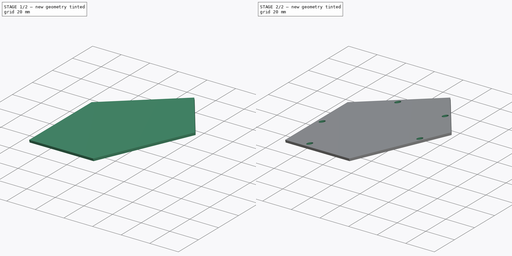
[diagram: build sequence overview — one tinted view per stage of 2, left to right]
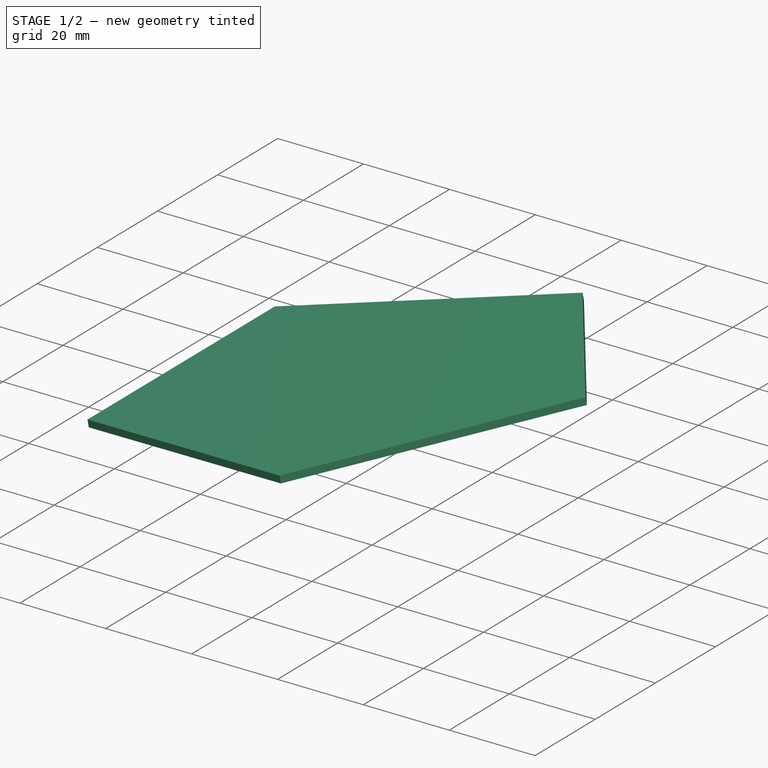
[diagram: stage 1 of 2 — iso view after this stage's code; geometry added in this stage tinted green]
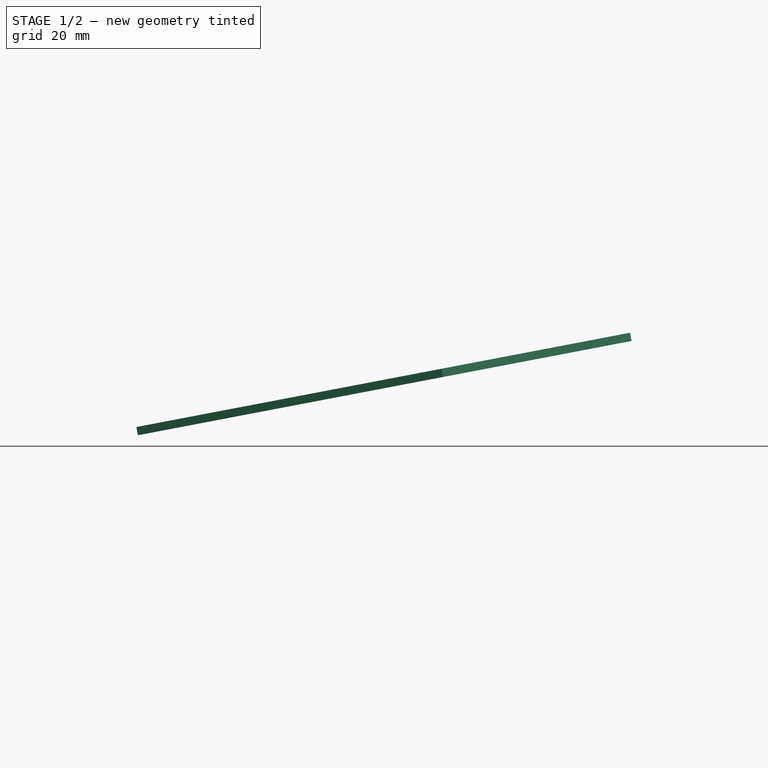
[diagram: stage 1 of 2 — front view after this stage's code; geometry added in this stage tinted green]
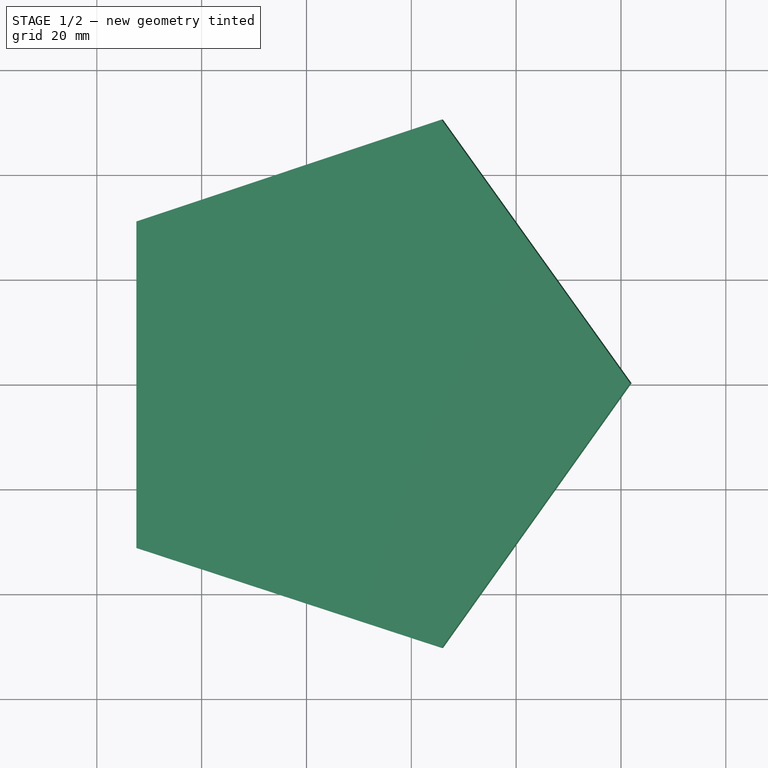
[diagram: stage 1 of 2 — top view after this stage's code; geometry added in this stage tinted green]
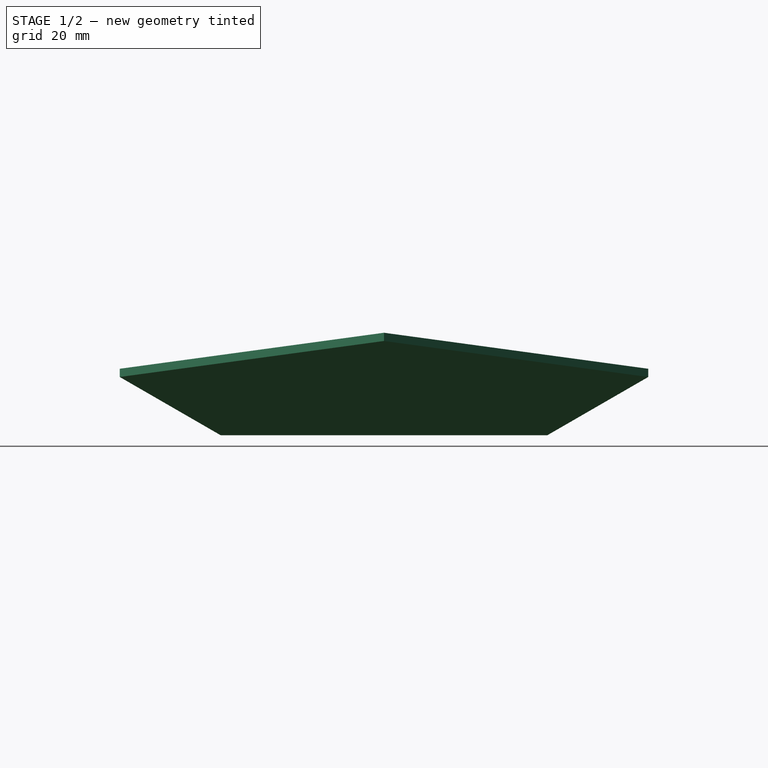
[diagram: stage 1 of 2 — right view after this stage's code; geometry added in this stage tinted green]
FCSTD DOCUMENT  (FreeCAD 0.20R27422 (Git))
Label: inner_assembly_PraGa
License: All rights reserved
LicenseURL: http://en.wikipedia.org/wiki/All_rights_reserved
objects: App::Link×15, App::DocumentObjectGroup×4, App::Part×2, PartDesign::SubShapeBinder×2, Sketcher::SketchObject×2, PartDesign::CoordinateSystem×1, App::FeaturePython×1, Part::Part2DObjectPython×1, PartDesign::Plane×1, PartDesign::Pad×1, PartDesign::Pocket×1, PartDesign::Body×1
note: 12 computed .brp shape members not serialized (recipe doc carries the construction recipe); baked Part::Feature solids carry a one-line shape summary decoded from their .brp
EXTERNAL_REF file=Inner_rev2.FCStd obj=LCS_1
EXTERNAL_REF file=Inner_rev2.FCStd obj=Part
EXTERNAL_REF file=Inner_rev2.FCStd obj=HoleAxis_3
EXTERNAL_REF file=Inner_rev2.FCStd obj=HoleAxis_2
EXTERNAL_REF file=Inner_rev2.FCStd obj=HoleAxis_10
EXTERNAL_REF file=Inner_rev2.FCStd obj=HoleAxis_15
EXTERNAL_REF file=Inner_rev2.FCStd obj=Part001
EXTERNAL_REF file=Inner_rev2.FCStd obj=HoleAxis_19
EXTERNAL_REF file=Inner_rev2.FCStd obj=Part002
EXTERNAL_REF file=Inner_rev2.FCStd obj=HoleAxis_24
EXTERNAL_REF file=Inner_rev2.FCStd obj=Part003

FEATURE [App::DocumentObjectGroup] Parts
FEATURE [PartDesign::CoordinateSystem] LCS_Origin
  AttacherType = Attacher::AttachEngine3D
  MapMode = 2
  Support = -> [X_Axis]
FEATURE [App::FeaturePython] Variables  # WARN: FeaturePython — macro-defined, semantics opaque (R4)
  Type = App::PropertyContainer
FEATURE [App::DocumentObjectGroup] Constraints
FEATURE [App::DocumentObjectGroup] Configurations
FEATURE [App::Link] shell_part
  AssemblyType = Part::Link
  AttachedBy = #LCS_1
  AttachedTo = Parent Assembly#LCS_Origin
  AttachmentOffset = pos=(0,0,0) rot=(-0.57735,-0.57735,0.57735;2.0944rad)
  LinkPlacement = pos=(54.4609,1.74e-14,1.6e-14) rot=(0,-1,0;0.188711rad)
  LinkedObject = -> <external Inner_rev2.FCStd>#Part
  Placement = pos=(54.4609,1.74e-14,1.6e-14) rot=(0,-1,0;0.188711rad)
  SolverId = Asm4EE
  expr: Placement = LCS_Origin.Placement * AttachmentOffset * Inner_rev2#LCS_1.Placement ^ -1
FEATURE [App::Link] shell_part001
  AssemblyType = Part::Link
  AttachedBy = #HoleAxis_3
  AttachedTo = shell_part#HoleAxis_3
  AttachmentOffset = pos=(0,0,0) rot=(1,0,0;3.14159rad)
  LinkPlacement = pos=(54.4609,5.33e-14,7.64e-14) rot=(-0.947228,0.307773,-0.089642;3.08336rad)
  LinkedObject = -> <external Inner_rev2.FCStd>#Part
  Placement = pos=(54.4609,5.33e-14,7.64e-14) rot=(-0.947228,0.307773,-0.089642;3.08336rad)
  SolverId = Asm4EE
  expr: Placement = shell_part.Placement * Inner_rev2#HoleAxis_3.Placement * AttachmentOffset * Inner_rev2#HoleAxis_3.Placement ^ -1
FEATURE [App::Link] shell
  AssemblyType = Part::Link
  AttachedBy = #HoleAxis_2
  AttachedTo = shell_part001#HoleAxis_2
  AttachmentOffset = pos=(0,0,0) rot=(1,0,0;3.14159rad)
  LinkPlacement = pos=(54.4609,7.1e-15,1.146e-13) rot=(0.093433,-0.1286,-0.987285;1.26883rad)
  LinkedObject = -> <external Inner_rev2.FCStd>#Part
  Placement = pos=(54.4609,7.1e-15,1.146e-13) rot=(0.093433,-0.1286,-0.987285;1.26883rad)
  SolverId = Asm4EE
  expr: Placement = shell_part001.Placement * Inner_rev2#HoleAxis_2.Placement * AttachmentOffset * Inner_rev2#HoleAxis_2.Placement ^ -1
FEATURE [App::Link] shell_part002
  AssemblyType = Part::Link
  AttachedBy = #HoleAxis_3
  AttachedTo = shell#HoleAxis_3
  AttachmentOffset = pos=(0,0,0) rot=(1,0,0;3.14159rad)
  LinkPlacement = pos=(54.4609,0,1.811e-13) rot=(-0.586878,0.807768,-0.05554;2.989rad)
  LinkedObject = -> <external Inner_rev2.FCStd>#Part
  Placement = pos=(54.4609,0,1.811e-13) rot=(-0.586878,0.807768,-0.05554;2.989rad)
  SolverId = Asm4EE
  expr: Placement = shell.Placement * Inner_rev2#HoleAxis_3.Placement * AttachmentOffset * Inner_rev2#HoleAxis_3.Placement ^ -1
FEATURE [App::Link] shell_part003
  AssemblyType = Part::Link
  AttachedBy = #HoleAxis_2
  AttachedTo = shell_part002#HoleAxis_2
  AttachmentOffset = pos=(0,0,0) rot=(1,0,0;3.14159rad)
  LinkPlacement = pos=(54.4609,1.42e-14,2.292e-13) rot=(0.094171,-0.030598,-0.995086;2.51616rad)
  LinkedObject = -> <external Inner_rev2.FCStd>#Part
  Placement = pos=(54.4609,1.42e-14,2.292e-13) rot=(0.094171,-0.030598,-0.995086;2.51616rad)
  SolverId = Asm4EE
  expr: Placement = shell_part002.Placement * Inner_rev2#HoleAxis_2.Placement * AttachmentOffset * Inner_rev2#HoleAxis_2.Placement ^ -1
FEATURE [App::Link] shell_part004
  AssemblyType = Part::Link
  AttachedBy = #HoleAxis_3
  AttachedTo = shell_part003#HoleAxis_3
  AttachmentOffset = pos=(0,0,0) rot=(1,0,0;3.14159rad)
  LinkPlacement = pos=(54.4609,-2.13e-14,2.842e-13) rot=(0,1,0;2.95288rad)
  LinkedObject = -> <external Inner_rev2.FCStd>#Part
  Placement = pos=(54.4609,-2.13e-14,2.842e-13) rot=(0,1,0;2.95288rad)
  SolverId = Asm4EE
  expr: Placement = shell_part003.Placement * Inner_rev2#HoleAxis_3.Placement * AttachmentOffset * Inner_rev2#HoleAxis_3.Placement ^ -1
FEATURE [App::Link] shell_part005
  AssemblyType = Part::Link
  AttachedBy = #HoleAxis_2
  AttachedTo = shell_part004#HoleAxis_2
  AttachmentOffset = pos=(0,0,0) rot=(1,0,0;3.14159rad)
  LinkPlacement = pos=(54.4609,3.2e-14,3.375e-13) rot=(0.094171,0.030598,-0.995086;3.76702rad)
  LinkedObject = -> <external Inner_rev2.FCStd>#Part
  Placement = pos=(54.4609,3.2e-14,3.375e-13) rot=(0.094171,0.030598,-0.995086;3.76702rad)
  SolverId = Asm4EE
  expr: Placement = shell_part004.Placement * Inner_rev2#HoleAxis_2.Placement * AttachmentOffset * Inner_rev2#HoleAxis_2.Placement ^ -1
FEATURE [App::Link] shell_part006
  AssemblyType = Part::Link
  AttachedBy = #HoleAxis_3
  AttachedTo = shell_part005#HoleAxis_3
  AttachmentOffset = pos=(0,0,0) rot=(1,0,0;3.14159rad)
  LinkPlacement = pos=(54.4609,7.1e-15,3.961e-13) rot=(0.586878,0.807768,0.05554;2.989rad)
  LinkedObject = -> <external Inner_rev2.FCStd>#Part
  Placement = pos=(54.4609,7.1e-15,3.961e-13) rot=(0.586878,0.807768,0.05554;2.989rad)
  SolverId = Asm4EE
  expr: Placement = shell_part005.Placement * Inner_rev2#HoleAxis_3.Placement * AttachmentOffset * Inner_rev2#HoleAxis_3.Placement ^ -1
FEATURE [App::Link] shell_part007
  AssemblyType = Part::Link
  AttachedBy = #HoleAxis_2
  AttachedTo = shell_part006#HoleAxis_2
  AttachmentOffset = pos=(0,0,0) rot=(1,0,0;3.14159rad)
  LinkPlacement = pos=(54.4609,-1.42e-14,4.545e-13) rot=(0.093433,0.1286,-0.987285;5.01436rad)
  LinkedObject = -> <external Inner_rev2.FCStd>#Part
  Placement = pos=(54.4609,-1.42e-14,4.545e-13) rot=(0.093433,0.1286,-0.987285;5.01436rad)
  SolverId = Asm4EE
  expr: Placement = shell_part006.Placement * Inner_rev2#HoleAxis_2.Placement * AttachmentOffset * Inner_rev2#HoleAxis_2.Placement ^ -1
FEATURE [App::Link] shell_part008
  AssemblyType = Part::Link
  AttachedBy = #HoleAxis_3
  AttachedTo = shell_part007#HoleAxis_3
  AttachmentOffset = pos=(0,0,0) rot=(1,0,0;3.14159rad)
  LinkPlacement = pos=(54.4609,2.84e-14,5.125e-13) rot=(0.947228,0.307773,0.089642;3.08336rad)
  LinkedObject = -> <external Inner_rev2.FCStd>#Part
  Placement = pos=(54.4609,2.84e-14,5.125e-13) rot=(0.947228,0.307773,0.089642;3.08336rad)
  SolverId = Asm4EE
  expr: Placement = shell_part007.Placement * Inner_rev2#HoleAxis_3.Placement * AttachmentOffset * Inner_rev2#HoleAxis_3.Placement ^ -1
FEATURE [App::Link] inner_center_part
  AssemblyType = Part::Link
  AttachedBy = #HoleAxis_15
  AttachedTo = shell#HoleAxis_10
  AttachmentOffset = pos=(0,0,0) rot=(0,1,0;3.14159rad)
  LinkPlacement = pos=(54.4609,0,1.155e-13) rot=(0.093433,-0.1286,-0.987285;1.26883rad)
  LinkedObject = -> <external Inner_rev2.FCStd>#Part001
  Placement = pos=(54.4609,0,1.155e-13) rot=(0.093433,-0.1286,-0.987285;1.26883rad)
  SolverId = Asm4EE
  expr: Placement = shell.Placement * Inner_rev2#HoleAxis_10.Placement * AttachmentOffset * Inner_rev2#HoleAxis_15.Placement ^ -1
FEATURE [App::Link] inner_left_part
  AssemblyType = Part::Link
  AttachedBy = #HoleAxis_19
  AttachedTo = shell_part005#HoleAxis_10
  AttachmentOffset = pos=(0,0,0) rot=(0,-1,0;3.14159rad)
  LinkPlacement = pos=(54.4609,2.84e-14,3.482e-13) rot=(-0.094171,-0.030598,0.995086;2.51616rad)
  LinkedObject = -> <external Inner_rev2.FCStd>#Part002
  Placement = pos=(54.4609,2.84e-14,3.482e-13) rot=(-0.094171,-0.030598,0.995086;2.51616rad)
  SolverId = Asm4EE
  expr: Placement = shell_part005.Placement * Inner_rev2#HoleAxis_10.Placement * AttachmentOffset * Inner_rev2#HoleAxis_19.Placement ^ -1
FEATURE [App::Link] inner_right_part
  AssemblyType = Part::Link
  AttachedBy = #HoleAxis_24
  AttachedTo = shell_part007#HoleAxis_10
  AttachmentOffset = pos=(0,0,0) rot=(0,-1,0;3.14159rad)
  LinkPlacement = pos=(54.4609,0,4.53e-13) rot=(-0.093433,-0.1286,0.987285;1.26883rad)
  LinkedObject = -> <external Inner_rev2.FCStd>#Part003
  Placement = pos=(54.4609,0,4.53e-13) rot=(-0.093433,-0.1286,0.987285;1.26883rad)
  SolverId = Asm4EE
  expr: Placement = shell_part007.Placement * Inner_rev2#HoleAxis_10.Placement * AttachmentOffset * Inner_rev2#HoleAxis_24.Placement ^ -1
FEATURE [App::Link] inner_center_part001
  AssemblyType = Part::Link
  AttachedBy = #HoleAxis_15
  AttachedTo = shell_part003#HoleAxis_10
  AttachmentOffset = pos=(0,0,0) rot=(0,-1,0;3.14159rad)
  LinkPlacement = pos=(54.4609,3.2e-14,2.38e-13) rot=(-0.094171,0.030598,0.995086;3.76702rad)
  LinkedObject = -> <external Inner_rev2.FCStd>#Part001
  Placement = pos=(54.4609,3.2e-14,2.38e-13) rot=(-0.094171,0.030598,0.995086;3.76702rad)
  SolverId = Asm4EE
  expr: Placement = shell_part003.Placement * Inner_rev2#HoleAxis_10.Placement * AttachmentOffset * Inner_rev2#HoleAxis_15.Placement ^ -1
FEATURE [App::Link] inner_center_part002
  AssemblyType = Part::Link
  AttachedBy = #HoleAxis_15
  AttachedTo = shell_part#HoleAxis_10
  AttachmentOffset = pos=(0,0,0) rot=(0,1,0;3.14159rad)
  LinkPlacement = pos=(54.4609,1.74e-14,1.6e-14) rot=(0,-1,0;0.188711rad)
  LinkedObject = -> <external Inner_rev2.FCStd>#Part001
  Placement = pos=(54.4609,1.74e-14,1.6e-14) rot=(0,-1,0;0.188711rad)
  SolverId = Asm4EE
  expr: Placement = shell_part.Placement * Inner_rev2#HoleAxis_10.Placement * AttachmentOffset * Inner_rev2#HoleAxis_15.Placement ^ -1
FEATURE [App::Part] Assembly
  AssemblyType = Part::Link
  Group = -> [LCS_Origin,Variables,Constraints,Configurations,shell_part,shell_part001,shell,shell_part002,shell_part003,shell_part004,shell_part005,shell_part006,shell_part007,shell_part008,inner_center_part,inner_left_part,inner_right_part,inner_center_part001,inner_center_part002]
  Origin = -> Origin
  Type = Assembly
FEATURE [Part::Part2DObjectPython] Polygon  # Draft 2D object (typed FeaturePython)
  Area = 0
  ChamferSize = 0
  DrawMode = 0
  FacesNumber = 5
  FilletRadius = 0
  MakeFace = false
  Placement = pos=(53.043,-0.077,9.961) rot=(-0.072027,-0.702263,0.708265;0.001571rad)
  Radius = 54.1
FEATURE [App::DocumentObjectGroup] Draft_Construction  label="Construction"
  Group = -> [Polygon]
FEATURE [PartDesign::SubShapeBinder] Binder
  BindCopyOnChange = 0
  BindMode = 0
  ClaimChildren = false
  Context = -> Part [Body.Binder.]
  Fuse = false
  MakeFace = true
  PartialLoad = false
  Relative = true
  Support = -> [Assembly[inner_center_part002.Chamfer001.Face39]]
  _Version = 2
FEATURE [PartDesign::Plane] DatumPlane
  Length = 143.941
  MapMode = 5
  Placement = pos=(-2.09133,2.3e-15,10.9504) rot=(0,-1,0;0.188711rad)
  ResizeMode = 0
  Support = -> [Binder]
  Width = 95.1627
FEATURE [Sketcher::SketchObject] Sketch
  FullyConstrained = true
  MapMode = 5
  Placement = pos=(-2.09133,2.3e-15,10.9504) rot=(0,-1,0;0.188711rad)
  Support = -> [DatumPlane]
  sketch-geometry (6):
    g0: LineSegment StartX=69.3779 StartY=50.406 StartZ=0 EndX=10.1221 EndY=31.1526 EndZ=0
    g1: LineSegment StartX=10.1221 StartY=31.1526 StartZ=0 EndX=10.1221 EndY=-31.1526 EndZ=0
    g2: LineSegment StartX=10.1221 StartY=-31.1526 StartZ=0 EndX=69.3779 EndY=-50.406 EndZ=0
    g3: LineSegment StartX=69.3779 StartY=-50.406 StartZ=0 EndX=106 EndY=0 EndZ=0
    g4: LineSegment StartX=106 StartY=0 StartZ=0 EndX=69.3779 EndY=50.406 EndZ=0
    g5: Circle CenterX=53 CenterY=0 CenterZ=0 NormalX=0 NormalY=0 NormalZ=1 AngleXU=0 Radius=53
  constraints (15):
    c: Coincident(g0,g1)
    c: Coincident(g1,g2)
    c: Coincident(g2,g3)
    c: Coincident(g3,g4)
    c: Coincident(g4,g0)
    c: Equal(g0, g1-g4) x4
    c: PointOnObject(g0,g5)
    c: PointOnObject(g1,g5)
    c: PointOnObject(g2,g5)
    c: PointOnObject(g3,g5)
    c: PointOnObject(g4,g5)
    c: PointOnObject(g5,g-1)
    c: PointOnObject(g3,g-1)
    c: Diameter(g5) = 106
    c: DistanceX(g5) = 53
FEATURE [PartDesign::SubShapeBinder] Binder001
  BindCopyOnChange = 0
  BindMode = 0
  ClaimChildren = false
  Context = -> Part [Body.Binder001.]
  Fuse = false
  MakeFace = true
  PartialLoad = false
  Relative = true
  Support = -> [Assembly[inner_center_part.Chamfer001.Edge148,inner_center_part001.Chamfer001.Edge148,inner_left_part.Chamfer003.Edge148,inner_right_part.Chamfer002.Edge148,inner_center_part002.Chamfer001.Edge148]]
  _Version = 2
FEATURE [PartDesign::Pad] Pad
  Direction = (-0.187592,2e-16,0.982247)
  Length = 1.6
  Length2 = 10
  Placement = pos=(-2.09133,2.3e-15,10.9504) rot=(0,-1,0;0.188711rad)
  Profile = -> Sketch
  ReferenceAxis = -> Sketch [N_Axis]
  Type = 0
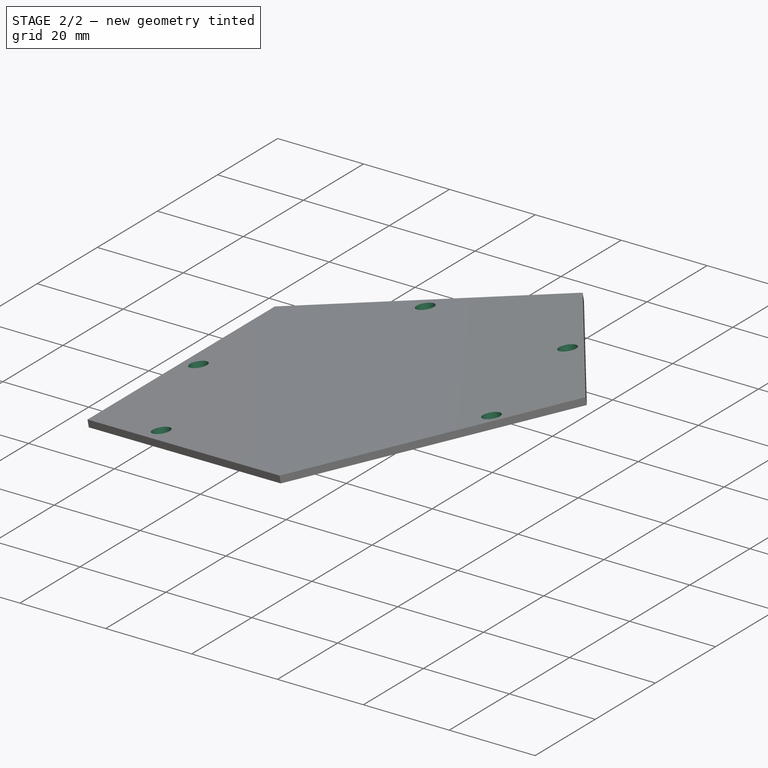
[diagram: stage 2 of 2 — iso view after this stage's code; geometry added in this stage tinted green]
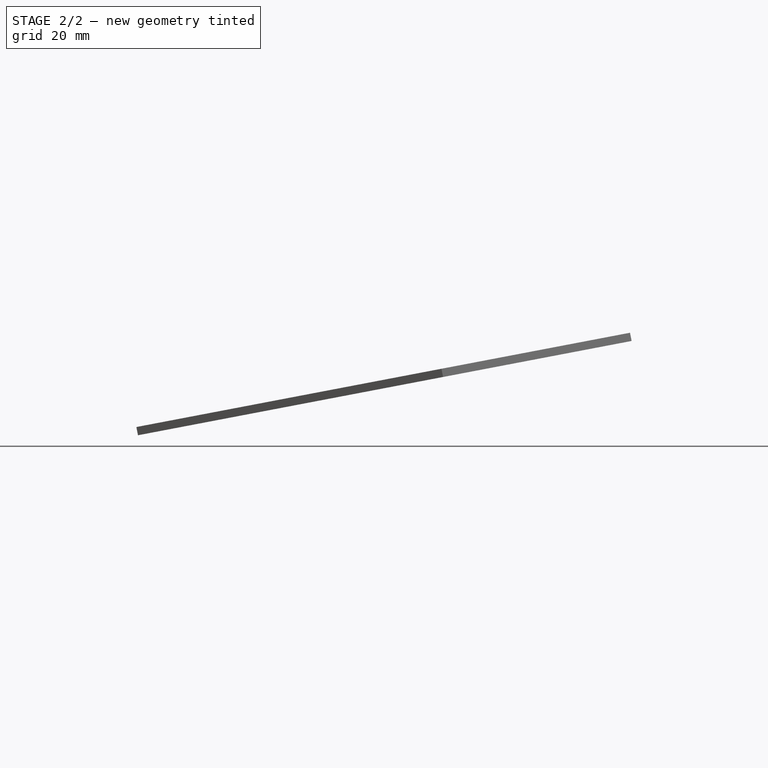
[diagram: stage 2 of 2 — front view after this stage's code; geometry added in this stage tinted green]
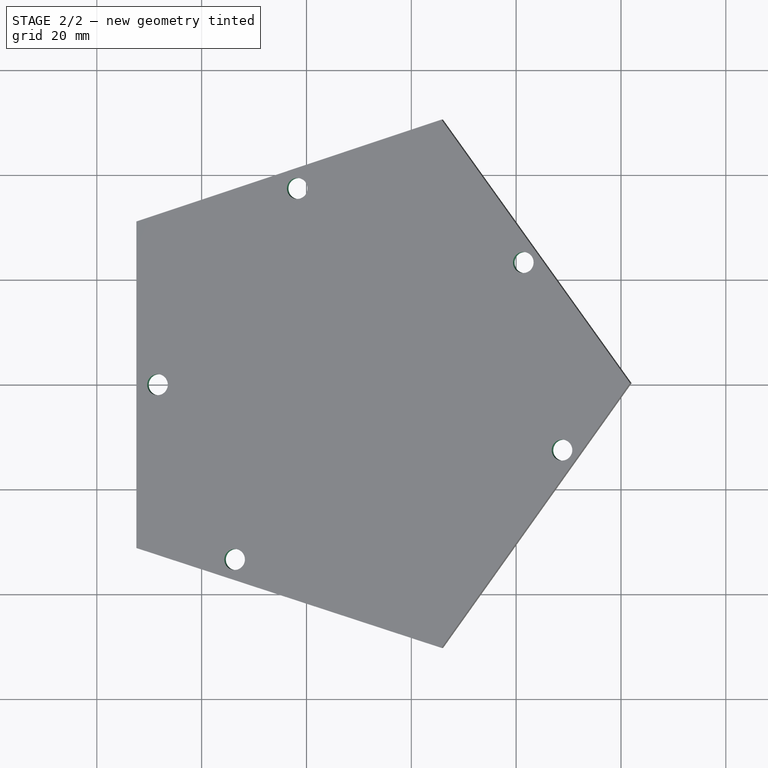
[diagram: stage 2 of 2 — top view after this stage's code; geometry added in this stage tinted green]
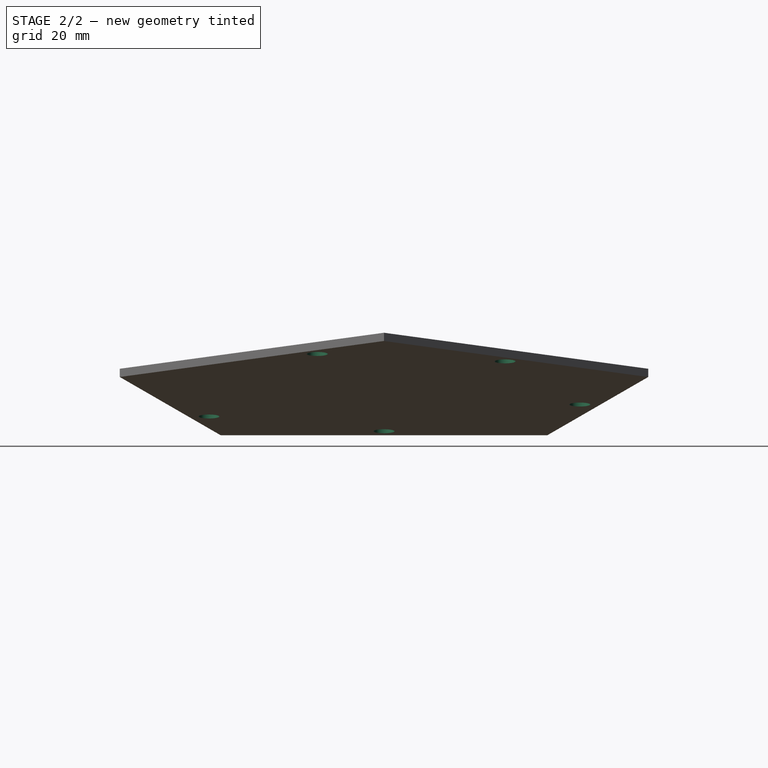
[diagram: stage 2 of 2 — right view after this stage's code; geometry added in this stage tinted green]
FEATURE [Sketcher::SketchObject] Sketch001
  ExternalGeometry = -> [Binder001]
  FullyConstrained = true
  MapMode = 5
  Placement = pos=(-2.39148,2.6e-15,12.522) rot=(0,-1,0;0.188711rad)
  Support = -> [Pad]
  sketch-geometry (5):
    g0: Circle CenterX=41.3576 CenterY=37.3523 CenterZ=0 NormalX=0 NormalY=0 NormalZ=1 AngleXU=0 Radius=2
    g1: Circle CenterX=92.7841 CenterY=-12.7398 CenterZ=0 NormalX=0 NormalY=0 NormalZ=1 AngleXU=0 Radius=2
    g2: Circle CenterX=29.196 CenterY=-33.4008 CenterZ=0 NormalX=0 NormalY=0 NormalZ=1 AngleXU=0 Radius=2
    g3: Circle CenterX=85.2678 CenterY=23.085 CenterZ=0 NormalX=0 NormalY=0 NormalZ=1 AngleXU=0 Radius=2
    g4: Circle CenterX=14.2195 CenterY=0 CenterZ=0 NormalX=0 NormalY=0 NormalZ=1 AngleXU=0 Radius=2
  constraints (10):
    c: Coincident(g0,g-3)
    c: Coincident(g1,g-4)
    c: Coincident(g2,g-5)
    c: Equal(g2,g1)
    c: Equal(g1,g0)
    c: Diameter(g0) = 4
    c: Coincident(g3,g-6)
    c: Coincident(g4,g-7)
    c: Equal(g4,g3)
    c: Equal(g3,g0)
FEATURE [PartDesign::Pocket] Pocket
  BaseFeature = -> Pad
  Direction = (0.187592,-2e-16,-0.982247)
  Length = 5
  Length2 = 5
  Placement = pos=(-2.09133,2.3e-15,10.9504) rot=(0,-1,0;0.188711rad)
  Profile = -> Sketch001
  ReferenceAxis = -> Sketch001 [N_Axis]
  Type = 1
FEATURE [PartDesign::Body] Body
  Group = -> [Binder,DatumPlane,Sketch,Binder001,Pad,Sketch001,Pocket]
  Origin = -> Origin002
  Tip = -> Pocket
FEATURE [App::Part] Part
  Group = -> [Body]
  Origin = -> Origin001

RESOLVED EXTERNAL PARTS (link-assembly join: the EXTERNAL_REF files above that resolve inside this repo's crawl, each included once):
---- part Inner_rev2.FCStd = doc fcstd_6d52c8a6ff96 ----
FCSTD DOCUMENT  (FreeCAD 0.20R27422 (Git))
Label: Inner_rev2
License: All rights reserved
LicenseURL: http://en.wikipedia.org/wiki/All_rights_reserved
objects: PartDesign::Line×25, Part::Feature×5, App::Part×5, Part::Chamfer×4, Part::Part2DObjectPython×1, PartDesign::CoordinateSystem×1
note: 36 computed .brp shape members not serialized (recipe doc carries the construction recipe); baked Part::Feature solids carry a one-line shape summary decoded from their .brp

FEATURE [Part::Part2DObjectPython] Line  # Draft 2D object (typed FeaturePython)
  Area = 0
  ChamferSize = 0
  Closed = false
  End = (-60.4609,0,-2.48e-14)
  FilletRadius = 0
  Length = 60.4609
  MakeFace = true
  Points = (2) [(0,0,0),(-60.4609,0,-2.4803e-14)]
  Start = (0,0,0)
  Subdivisions = 0
FEATURE [Part::Feature] Shape  label="shell"
  Placement = pos=(0,0,0) rot=(0,1,0;0.188711rad)
  shape: bbox 26.49 x 83.96 x 75.99 mm, 229 faces (baked)
FEATURE [Part::Feature] Shape001  label="pcb"
  Placement = pos=(0,0,0) rot=(0,1,0;0.188711rad)
  shape: bbox 11.8 x 62.95 x 53.85 mm, 64 faces (baked)
FEATURE [Part::Feature] Shape002
  shape: bbox 23.55 x 50.22 x 45.04 mm, 88 faces (baked)
FEATURE [Part::Feature] Shape003
  shape: bbox 23.55 x 50.22 x 45.04 mm, 88 faces (baked)
FEATURE [Part::Feature] Shape004
  shape: bbox 23.55 x 50.22 x 45.04 mm, 88 faces (baked)
FEATURE [Part::Chamfer] Chamfer
  Base = -> Shape002
  Edges = 6 edges r=0.7: [Edge84,Edge94,Edge102,Edge112,Edge122,Edge128]
FEATURE [Part::Chamfer] Chamfer001  label="inner_center_rev2"
  Base = -> Chamfer
  Edges = 4 edges r=0.7: [Edge57,Edge71,Edge76,Edge118]
FEATURE [Part::Chamfer] Chamfer002  label="inner_right_rev2"
  Base = -> Shape004
  Edges = 10 edges r=0.7: [Edge69,Edge71,Edge75,Edge88,Edge89,Edge102,Edge112,Edge114,Edge122,Edge128]
FEATURE [Part::Chamfer] Chamfer003  label="inner_left_rev2"
  Base = -> Shape003
  Edges = 10 edges r=0.7: [Edge69,Edge71,Edge75,Edge84,Edge94,Edge102,Edge105,Edge114,Edge122,Edge126]
FEATURE [App::Part] Part004  label="pcb_part"
  Group = -> [Shape001]
  Origin = -> Origin004
FEATURE [PartDesign::Line] HoleAxis_1  label="top_center_magnet_axis"
  AttacherType = Attacher::AttachEngineLine
  Length = 7.89078
  MapMode = 19
  Placement = pos=(-61.4889,0,38.0022) rot=(0,1,0;3.69517rad)
  ResizeMode = 1
  Support = -> [Shape]
FEATURE [PartDesign::Line] HoleAxis_2  label="left_center_magnet_axis"
  AttacherType = Attacher::AttachEngineLine
  Length = 7.8873
  MapMode = 19
  Placement = pos=(-68.7467,-22.3371,-8.2e-15) rot=(-0.076899,0.485523,0.870835;3.41572rad)
  ResizeMode = 1
  Support = -> [Shape]
FEATURE [PartDesign::Line] HoleAxis_3  label="right_center_magnet_axis"
  AttacherType = Attacher::AttachEngineLine
  Length = 7.8873
  MapMode = 19
  Placement = pos=(-68.7467,22.3371,-2.74e-14) rot=(-0.076899,-0.485523,0.870835;2.86747rad)
  ResizeMode = 1
  Support = -> [Shape]
FEATURE [PartDesign::Line] HoleAxis_4  label="top_left_magnet_axis"
  AttacherType = Attacher::AttachEngineLine
  Length = 7.89078
  MapMode = 19
  Placement = pos=(-57.7484,-24.8267,35.6905) rot=(0,1,0;3.69517rad)
  ResizeMode = 1
  Support = -> [Shape]
FEATURE [PartDesign::Line] HoleAxis_5  label="left_right_magnet_axis"
  AttacherType = Attacher::AttachEngineLine
  Length = 7.8873
  MapMode = 19
  Placement = pos=(-68.598,-8.56496,-21.1189) rot=(-0.076899,0.485523,0.870835;3.41572rad)
  ResizeMode = 1
  Support = -> [Shape]
FEATURE [PartDesign::Line] HoleAxis_6  label="right_top_magnet_axis"
  AttacherType = Attacher::AttachEngineLine
  Length = 7.8873
  MapMode = 19
  Placement = pos=(-60.5313,33.3917,21.1189) rot=(-0.076899,-0.485523,0.870835;2.86747rad)
  ResizeMode = 1
  Support = -> [Shape]
FEATURE [PartDesign::Line] HoleAxis_7  label="flat_top_left_magnet_axis"
  AttacherType = Attacher::AttachEngineLine
  Length = 7.32715
  MapMode = 19
  Placement = pos=(-51.1858,-21.3123,22.3027) rot=(0,-1,0;1.38209rad)
  ResizeMode = 1
  Support = -> [Shape]
FEATURE [PartDesign::Line] HoleAxis_8  label="flat_top_right_magnet_axis"
  AttacherType = Attacher::AttachEngineLine
  Length = 7.32715
  MapMode = 19
  Placement = pos=(-51.1858,21.3123,22.3027) rot=(0,-1,0;1.38209rad)
  ResizeMode = 1
  Support = -> [Shape]
FEATURE [PartDesign::Line] HoleAxis_9  label="flat_bottom_magnet_axis"
  AttacherType = Attacher::AttachEngineLine
  Length = 7.32715
  MapMode = 19
  Placement = pos=(-58.1106,-1.2e-14,-13.956) rot=(0,-1,0;1.38209rad)
  ResizeMode = 1
  Support = -> [Shape]
FEATURE [PartDesign::Line] HoleAxis_10  label="flat_center_magnet_axis"
  AttacherType = Attacher::AttachEngineLine
  Length = 7.32715
  MapMode = 19
  Placement = pos=(-53.4941,-5e-15,10.2165) rot=(0,-1,0;1.38209rad)
  ResizeMode = 1
  Support = -> [Shape]
FEATURE [PartDesign::CoordinateSystem] LCS_1  label="flat_center_lcs"
  AttacherType = Attacher::AttachEngine3D
  MapMode = 11
  Placement = pos=(-53.4941,-5e-15,10.2165) rot=(-0.537462,-0.537462,0.649822;1.98909rad)
  Support = -> [Shape]
FEATURE [App::Part] Part  label="shell_part"
  Group = -> [Shape,HoleAxis_1,HoleAxis_2,HoleAxis_3,HoleAxis_4,HoleAxis_5,HoleAxis_6,HoleAxis_7,HoleAxis_8,HoleAxis_9,HoleAxis_10,LCS_1]
  Origin = -> Origin
FEATURE [PartDesign::Line] HoleAxis_11  label="screw_axis"
  AttacherType = Attacher::AttachEngineLine
  Length = 7.04534
  MapMode = 19
  Placement = pos=(-39.2746,0,21.3647) rot=(0,0,1;0rad)
  ResizeMode = 1
  Support = -> [Chamfer001]
FEATURE [PartDesign::Line] HoleAxis_12  label="left_top_axis"
  AttacherType = Attacher::AttachEngineLine
  Length = 7.32715
  MapMode = 19
  Placement = pos=(-51.1858,21.3123,22.3027) rot=(0,1,0;1.75951rad)
  ResizeMode = 1
  Support = -> [Chamfer001]
FEATURE [PartDesign::Line] HoleAxis_13  label="right_top_axis"
  AttacherType = Attacher::AttachEngineLine
  Length = 7.32715
  MapMode = 19
  Placement = pos=(-51.1858,-21.3123,22.3027) rot=(0,1,0;1.75951rad)
  ResizeMode = 1
  Support = -> [Chamfer001]
FEATURE [PartDesign::Line] HoleAxis_14  label="bottom_axis"
  AttacherType = Attacher::AttachEngineLine
  Length = 7.32715
  MapMode = 19
  Placement = pos=(-58.1106,-1.2e-14,-13.956) rot=(0,1,0;1.75951rad)
  ResizeMode = 1
  Support = -> [Chamfer001]
FEATURE [PartDesign::Line] HoleAxis_15  label="center_axis"
  AttacherType = Attacher::AttachEngineLine
  Length = 7.32715
  MapMode = 19
  Placement = pos=(-53.4941,-5e-15,10.2165) rot=(0,1,0;1.75951rad)
  ResizeMode = 1
  Support = -> [Chamfer001]
FEATURE [App::Part] Part001  label="inner_center_part"
  Group = -> [Shape002,Chamfer,Chamfer001,HoleAxis_11,HoleAxis_12,HoleAxis_13,HoleAxis_14,HoleAxis_15]
  Origin = -> Origin001
FEATURE [PartDesign::Line] HoleAxis_16  label="screw_axis001"
  AttacherType = Attacher::AttachEngineLine
  Length = 7.04534
  MapMode = 19
  Placement = pos=(-39.2746,-12.7874,21.3647) rot=(0,0,1;0rad)
  ResizeMode = 1
  Support = -> [Chamfer003]
FEATURE [PartDesign::Line] HoleAxis_17  label="left_top_axis001"
  AttacherType = Attacher::AttachEngineLine
  Length = 7.32715
  MapMode = 19
  Placement = pos=(-51.1858,21.3123,22.3027) rot=(0,1,0;1.75951rad)
  ResizeMode = 1
  Support = -> [Chamfer003]
FEATURE [PartDesign::Line] HoleAxis_18  label="right_top_axis001"
  AttacherType = Attacher::AttachEngineLine
  Length = 7.32715
  MapMode = 19
  Placement = pos=(-51.1858,-21.3123,22.3027) rot=(0,1,0;1.75951rad)
  ResizeMode = 1
  Support = -> [Chamfer003]
FEATURE [PartDesign::Line] HoleAxis_19  label="center_axis001"
  AttacherType = Attacher::AttachEngineLine
  Length = 7.32715
  MapMode = 19
  Placement = pos=(-53.4941,-5e-15,10.2165) rot=(0,1,0;1.75951rad)
  ResizeMode = 1
  Support = -> [Chamfer003]
FEATURE [PartDesign::Line] HoleAxis_20  label="bottom_axis001"
  AttacherType = Attacher::AttachEngineLine
  Length = 7.32715
  MapMode = 19
  Placement = pos=(-58.1106,-1.2e-14,-13.956) rot=(0,1,0;1.75951rad)
  ResizeMode = 1
  Support = -> [Chamfer003]
FEATURE [App::Part] Part002  label="inner_left_part"
  Group = -> [Shape003,Chamfer003,HoleAxis_16,HoleAxis_17,HoleAxis_18,HoleAxis_19,HoleAxis_20]
  Origin = -> Origin002
FEATURE [PartDesign::Line] HoleAxis_21  label="screw_axis002"
  AttacherType = Attacher::AttachEngineLine
  Length = 7.04534
  MapMode = 19
  Placement = pos=(-39.2746,12.7874,21.3647) rot=(0,0,1;0rad)
  ResizeMode = 1
  Support = -> [Chamfer002]
FEATURE [PartDesign::Line] HoleAxis_22  label="left_top_axis002"
  AttacherType = Attacher::AttachEngineLine
  Length = 7.32715
  MapMode = 19
  Placement = pos=(-51.1858,21.3123,22.3027) rot=(0,1,0;1.75951rad)
  ResizeMode = 1
  Support = -> [Chamfer002]
FEATURE [PartDesign::Line] HoleAxis_23  label="right_top_axis002"
  AttacherType = Attacher::AttachEngineLine
  Length = 7.32715
  MapMode = 19
  Placement = pos=(-51.1858,-21.3123,22.3027) rot=(0,1,0;1.75951rad)
  ResizeMode = 1
  Support = -> [Chamfer002]
FEATURE [PartDesign::Line] HoleAxis_24  label="center_axis002"
  AttacherType = Attacher::AttachEngineLine
  Length = 7.32715
  MapMode = 19
  Placement = pos=(-53.4941,-5e-15,10.2165) rot=(0,1,0;1.75951rad)
  ResizeMode = 1
  Support = -> [Chamfer002]
FEATURE [PartDesign::Line] HoleAxis_25  label="bottom_axis002"
  AttacherType = Attacher::AttachEngineLine
  Length = 7.32715
  MapMode = 19
  Placement = pos=(-58.1106,-1.2e-14,-13.956) rot=(0,1,0;1.75951rad)
  ResizeMode = 1
  Support = -> [Chamfer002]
FEATURE [App::Part] Part003  label="inner_right_part"
  Group = -> [Shape004,Chamfer002,HoleAxis_21,HoleAxis_22,HoleAxis_23,HoleAxis_24,HoleAxis_25]
  Origin = -> Origin003
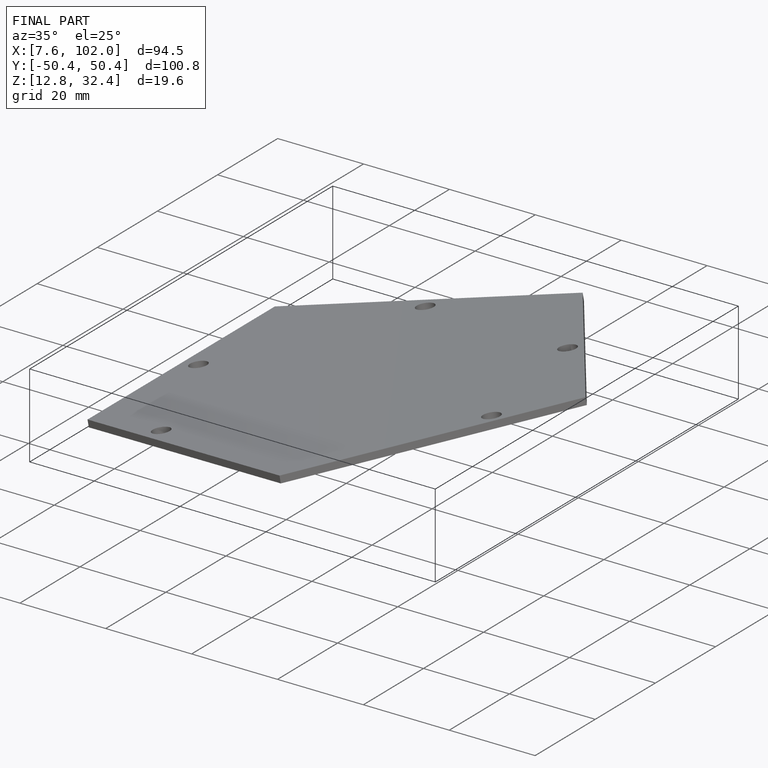
[diagram: finished part — iso view with bounding-box wireframe]
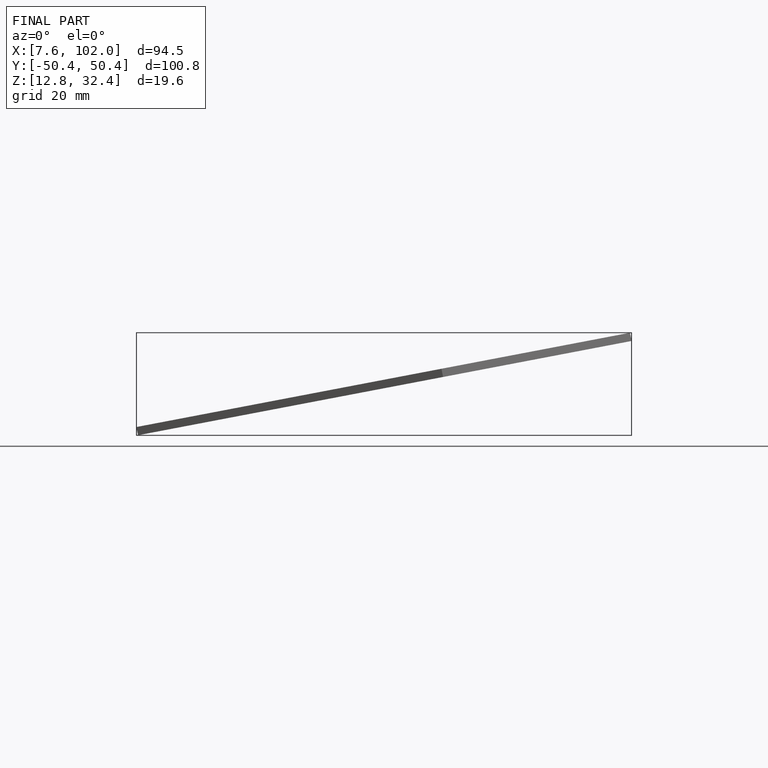
[diagram: finished part — front view with bounding-box wireframe]
